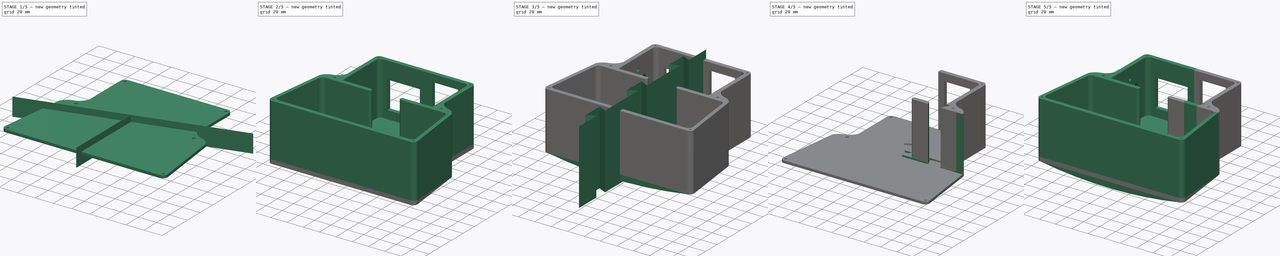
[diagram: build sequence overview — one tinted view per stage of 5, left to right]
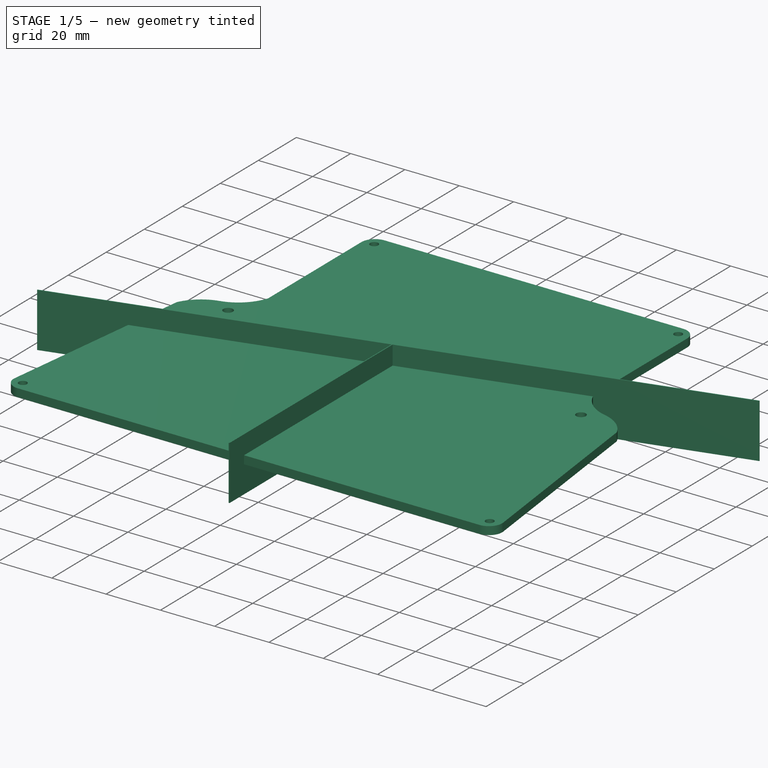
[diagram: stage 1 of 5 — iso view after this stage's code; geometry added in this stage tinted green]
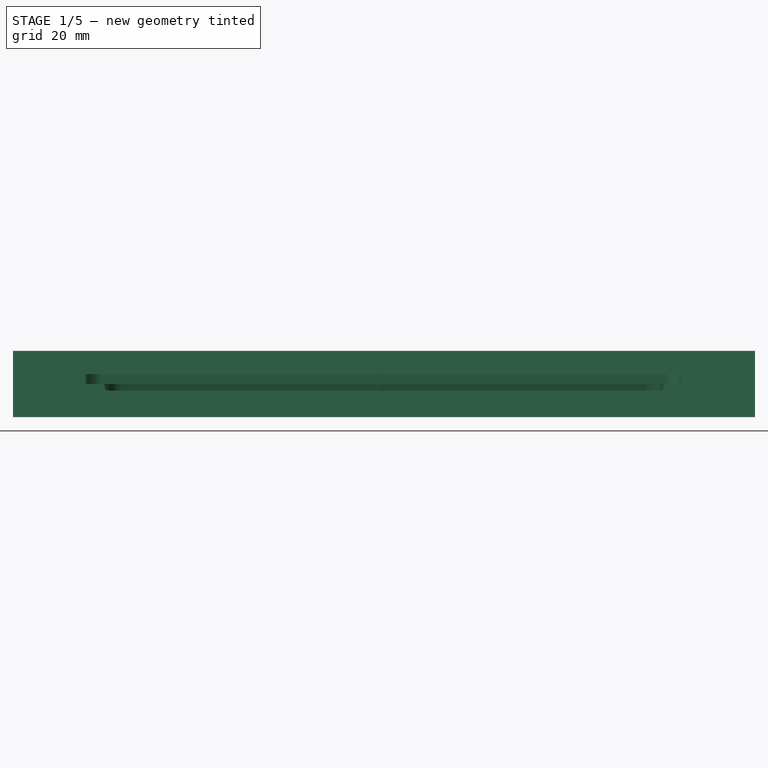
[diagram: stage 1 of 5 — front view after this stage's code; geometry added in this stage tinted green]
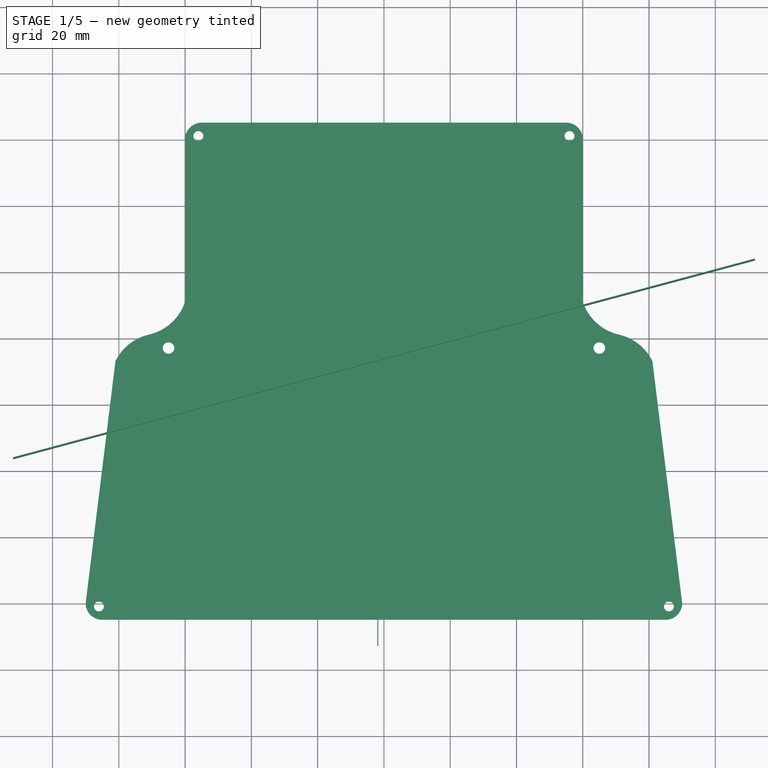
[diagram: stage 1 of 5 — top view after this stage's code; geometry added in this stage tinted green]
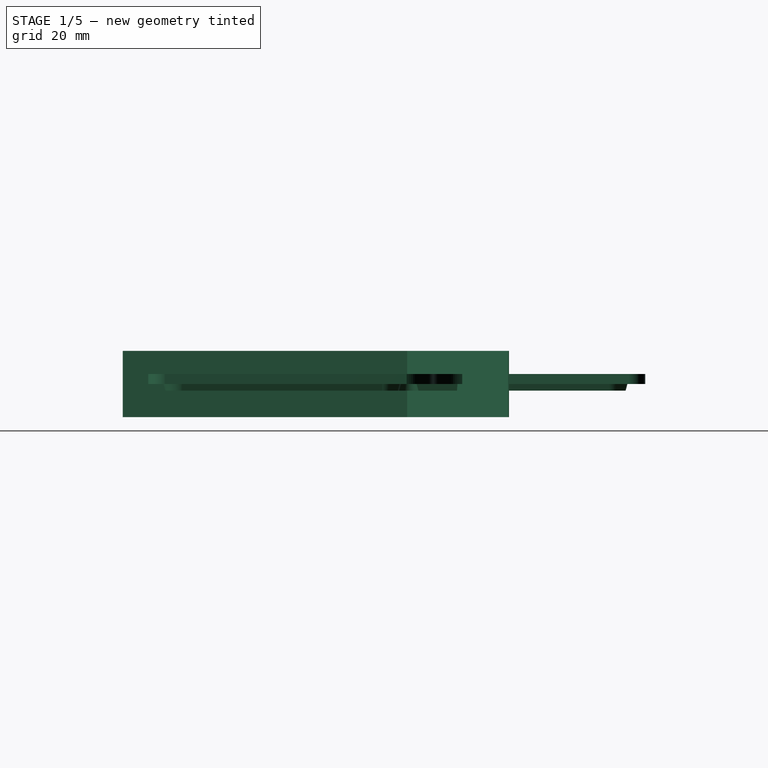
[diagram: stage 1 of 5 — right view after this stage's code; geometry added in this stage tinted green]
FCSTD DOCUMENT  (FreeCAD 0.19R21329 (Git))
Label: ElectricLongboard_Box
License: All rights reserved
LicenseURL: http://en.wikipedia.org/wiki/All_rights_reserved
objects: Part::FeaturePython×18, Sketcher::SketchObject×13, Part::Extrusion×5, PartDesign::Pocket×4, PartDesign::Pad×2, App::DocumentObjectGroup×2, Part::Loft×1, Part::Feature×1, PartDesign::Body×1, Part::MultiFuse×1, Part::Cut×1
note: 53 computed .brp shape members not serialized (recipe doc carries the construction recipe); baked Part::Feature solids carry a one-line shape summary decoded from their .brp

FEATURE [Sketcher::SketchObject] Sketch  label="Sketch_Base"
  sketch-geometry (32):
    g0: LineSegment StartX=-85 StartY=-85 StartZ=0 EndX=85 EndY=-85 EndZ=0
    g1: LineSegment StartX=-55 StartY=65 StartZ=0 EndX=55 EndY=65 EndZ=0
    g2: LineSegment StartX=-90 StartY=-80 StartZ=0 EndX=-81.0246 EndY=-7 EndZ=0
    g3: LineSegment StartX=90 StartY=-80 StartZ=0 EndX=81.0246 EndY=-7 EndZ=0
    g4: LineSegment StartX=-60 StartY=60 StartZ=0 EndX=-60 EndY=11 EndZ=0
    g5: LineSegment StartX=60 StartY=60 StartZ=0 EndX=60 EndY=11 EndZ=0
    g6: LineSegment StartX=-50 StartY=60 StartZ=0 EndX=50 EndY=60 EndZ=0
    g7: LineSegment StartX=-55 StartY=55 StartZ=0 EndX=-55 EndY=-4 EndZ=0
    g8: LineSegment StartX=55 StartY=55 StartZ=0 EndX=55 EndY=-4 EndZ=0
    g9: LineSegment StartX=-20 StartY=-9 StartZ=0 EndX=-72.4999 EndY=-9 EndZ=0
    g10: LineSegment StartX=-77.5 StartY=-14 StartZ=0 EndX=-85 EndY=-75 EndZ=0
    g11: LineSegment StartX=-80 StartY=-80 StartZ=0 EndX=80 EndY=-80 EndZ=0
    g12: LineSegment StartX=85 StartY=-75 StartZ=0 EndX=77.5 EndY=-14 EndZ=0
    g13: LineSegment StartX=20 StartY=-9 StartZ=0 EndX=72.4999 EndY=-9 EndZ=0
    g14: ArcOfCircle CenterX=50 CenterY=55 CenterZ=0 NormalX=0 NormalY=0 NormalZ=1 AngleXU=0 Radius=5 StartAngle=-9e-16 EndAngle=1.5708
    g15: ArcOfCircle CenterX=-50 CenterY=55 CenterZ=0 NormalX=0 NormalY=0 NormalZ=1 AngleXU=0 Radius=5 StartAngle=1.5708 EndAngle=3.14159
    g16: ArcOfCircle CenterX=-72.5 CenterY=-14 CenterZ=0 NormalX=0 NormalY=0 NormalZ=1 AngleXU=0 Radius=5 StartAngle=1.57078 EndAngle=3.14159
    g17: ArcOfCircle CenterX=72.5 CenterY=-14 CenterZ=0 NormalX=0 NormalY=0 NormalZ=1 AngleXU=0 Radius=5 StartAngle=-9.93996e-11 EndAngle=1.57081
    g18: ArcOfCircle CenterX=-74.2622 CenterY=15.6464 CenterZ=0 NormalX=0 NormalY=0 NormalZ=1 AngleXU=0 Radius=15 StartAngle=4.92994 EndAngle=5.96824
    g19: ArcOfCircle CenterX=-67.5508 CenterY=-13.5922 CenterZ=0 NormalX=0 NormalY=0 NormalZ=1 AngleXU=0 Radius=15 StartAngle=1.8045 EndAngle=2.68657
    g20: ArcOfCircle CenterX=-55 CenterY=60 CenterZ=0 NormalX=0 NormalY=0 NormalZ=1 AngleXU=0 Radius=5 StartAngle=1.5708 EndAngle=3.14159
    g21: ArcOfCircle CenterX=55 CenterY=60 CenterZ=0 NormalX=0 NormalY=0 NormalZ=1 AngleXU=0 Radius=5 StartAngle=-1.8e-15 EndAngle=1.5708
    g22: ArcOfCircle CenterX=85 CenterY=-80 CenterZ=0 NormalX=0 NormalY=0 NormalZ=1 AngleXU=0 Radius=5 StartAngle=4.71239 EndAngle=6.28319
    g23: ArcOfCircle CenterX=-85 CenterY=-80 CenterZ=0 NormalX=0 NormalY=0 NormalZ=1 AngleXU=0 Radius=5 StartAngle=3.14159 EndAngle=4.71239
    g24: ArcOfCircle CenterX=-80 CenterY=-75 CenterZ=0 NormalX=0 NormalY=0 NormalZ=1 AngleXU=0 Radius=5 StartAngle=3.14159 EndAngle=4.71239
    g25: ArcOfCircle CenterX=80 CenterY=-75 CenterZ=0 NormalX=0 NormalY=0 NormalZ=1 AngleXU=0 Radius=5 StartAngle=4.71239 EndAngle=6.28319
    g26: LineSegment StartX=-55 StartY=-4 StartZ=0 EndX=-20 EndY=-4 EndZ=0
    g27: LineSegment StartX=20 StartY=-4 StartZ=0 EndX=55 EndY=-4 EndZ=0
    g28: ArcOfCircle CenterX=-20 CenterY=-6.5 CenterZ=0 NormalX=0 NormalY=0 NormalZ=1 AngleXU=0 Radius=2.5 StartAngle=4.71239 EndAngle=7.85398
    g29: ArcOfCircle CenterX=20 CenterY=-6.5 CenterZ=0 NormalX=0 NormalY=0 NormalZ=1 AngleXU=0 Radius=2.5 StartAngle=1.5708 EndAngle=4.71239
    g30: ArcOfCircle CenterX=74.2622 CenterY=15.6464 CenterZ=0 NormalX=0 NormalY=0 NormalZ=1 AngleXU=0 Radius=15 StartAngle=3.45654 EndAngle=4.49484
    g31: ArcOfCircle CenterX=67.5508 CenterY=-13.5922 CenterZ=0 NormalX=0 NormalY=0 NormalZ=1 AngleXU=0 Radius=15 StartAngle=0.455021 EndAngle=1.33709
  constraints (95):
    c: DistanceY(g0,g1) = 150
    c: DistanceY(g11,g9) = 71
    c: Vertical(g4)
    c: Vertical(g7)
    c: Parallel(g2,g10)
    c: Coincident(g17,g12)
    c: Coincident(g0,g23)
    c: Coincident(g0,g22)
    c: DistanceY(g11,g0) = -5
    c: Coincident(g3,g22)
    c: Coincident(g17,g13)
    c: Horizontal(g9)
    c: Coincident(g8,g14)
    c: Coincident(g6,g14)
    c: Coincident(g6,g15)
    c: Coincident(g7,g15)
    c: Coincident(g9,g16)
    c: Coincident(g10,g16)
    c: Coincident(g2,g23)
    c: Coincident(g21,g1)
    c: Coincident(g21,g5)
    c: Coincident(g20,g1)
    c: Coincident(g4,g20)
    c: Coincident(g4,g18)
    c: DistanceY(g1,g6) = -5
    c: Coincident(g19,g2)
    c: Symmetric(g11,g11,g-2)
    c: Symmetric(g10,g12,g-2)
    c: DistanceX(g2,g10) = 5
    c: Symmetric(g0,g0,g-2)
    c: DistanceX(g0,g0) = 170
    c: DistanceX(g10,g12) = 155
    c: Radius(g16) = 5
    c: DistanceY(g10,g9) = 5
    c: Symmetric(g16,g17,g-2)
    c: Symmetric(g10,g12,g-2)
    c: Symmetric(g9,g13,g-2)
    c: DistanceX(g7,g8) = 110
    c: DistanceX(g4,g5) = 120
    c: DistanceY(g9,g7) = 5
    c: Symmetric(g7,g8,g-2)
    c: Symmetric(g6,g6,g-2)
    c: Symmetric(g1,g1,g-2)
    c: DistanceY(g7,g6) = 5
    c: Symmetric(g7,g8,g-2)
    c: DistanceY(g4,g1) = 5
    c: DistanceX(g4,g1) = 5
    c: Radius(g20) = 5
    c: DistanceX(g7,g6) = 5
    c: Radius(g15) = 5
    c: Symmetric(g4,g5,g-2)
    c: Equal(g21,g20)
    c: Equal(g14,g15)
    c: Symmetric(g4,g5,g-2)
    c: DistanceY(g9,g4) = 20
    c: Symmetric(g2,g3,g-2)
    c: Coincident(g18,g19)
    c: Radius(g18) = 15
    c: DistanceY(g9,g18) = 10
    c: DistanceY(g9,g2) = 2
    c: DistanceX(g2,g18) = 10
    c: Equal(g19,g18)
    c: Radius(g23) = 5
    c: Equal(g22,g23)
    c: Symmetric(g13,g9,g-2)
    c: DistanceX(g9,g7) = -35
    c: DistanceY(g0,g2) = 5
    c: DistanceX(g2,g0) = 5
    c: DistanceX(g10,g11) = 5
    c: DistanceY(g11,g10) = 5
    c: Coincident(g24,g10)
    c: Coincident(g24,g11)
    c: Radius(g24) = 5
    c: Coincident(g25,g11)
    c: Coincident(g25,g12)
    c: Equal(g24,g25)
    c: Symmetric(g2,g3,g-2)
    c: Horizontal(g26)
    c: Coincident(g27,g8)
    c: Coincident(g26,g7)
    c: DistanceX(g26,g9) = 0
    c: Symmetric(g26,g27,g-2)
    c: Coincident(g28,g9)
    c: Coincident(g28,g26)
    c: Radius(g28) = 2.5
    c: Coincident(g29,g27)
    c: Coincident(g29,g13)
    c: Equal(g28,g29)
    c: Coincident(g30,g5)
    c: Coincident(g30,g31)
    c: Coincident(g31,g3)
    c: Symmetric(g30,g18,g-2)
    c: Equal(g18,g30)
    c: Equal(g31,g19)
    c: DistanceY(g0,g-1) = 85
FEATURE [PartDesign::Pad] Pad  label="Pad_MainPerimeter"
  AllowMultiFace = false
  Length = 70
  Length2 = 0
  Profile = -> Sketch
  Type = 0
FEATURE [Sketcher::SketchObject] Sketch002  label="Sketch_ScrewsHoles"
  AttachmentOffset = pos=(0,0,0) rot=(0,0,1;3.14159rad)
  MapMode = 5
  Placement = pos=(0,0,0) rot=(0,-1,0;3.14159rad)
  Support = -> [Pad]
  sketch-geometry (6):
    g0: Circle CenterX=-86 CenterY=-81 CenterZ=0 NormalX=0 NormalY=0 NormalZ=1 AngleXU=0 Radius=1.15
    g1: Circle CenterX=-65 CenterY=-3 CenterZ=0 NormalX=0 NormalY=0 NormalZ=1 AngleXU=0 Radius=1.4
    g2: Circle CenterX=65 CenterY=-3 CenterZ=0 NormalX=0 NormalY=0 NormalZ=1 AngleXU=0 Radius=1.4
    g3: Circle CenterX=86 CenterY=-81 CenterZ=0 NormalX=0 NormalY=0 NormalZ=1 AngleXU=0 Radius=1.15
    g4: Circle CenterX=-56 CenterY=61 CenterZ=0 NormalX=0 NormalY=0 NormalZ=1 AngleXU=0 Radius=1.15
    g5: Circle CenterX=56 CenterY=61 CenterZ=0 NormalX=0 NormalY=0 NormalZ=1 AngleXU=0 Radius=1.15
  constraints (9):
    c: Symmetric(g0,g3,g-2)
    c: Symmetric(g4,g5,g-2)
    c: Symmetric(g1,g2,g-2)
    c: Equal(g1,g2)
    c: Equal(g4,g5)
    c: Equal(g3,g0)
    c: Diameter(g0) = 2.3
    c: Diameter(g1) = 2.8
    c: Diameter(g4) = 2.3
FEATURE [PartDesign::Pocket] Pocket  label="Pocket_ScrewHoles"
  AllowMultiFace = false
  BaseFeature = -> Pad
  Length = 5
  Length2 = 100
  Profile = -> Sketch002
  Type = 1
FEATURE [App::DocumentObjectGroup] GrExplode_Slice  label="Exploded Slice"
  Group = -> [Slice_child0,Slice_child1,Slice_child2,Slice_child3,Slice_child4,Slice_child5,Slice_child6,Slice_child7,Slice_child8]
FEATURE [Sketcher::SketchObject] Sketch011  label="Sketch_LID_Ext"
  MapMode = 2
  Support = -> [XY_Plane]
  expr: Constraints[47] = 3
  expr: Constraints[24] = Sketch.Constraints[57]
  expr: Constraints[46] = 3.5
  expr: Constraints[45] = 3
  expr: Constraints[14] = Sketch.Constraints[38]
  expr: Constraints[27] = Sketch.Constraints[62]
  expr: Constraints[17] = Sketch.Constraints[46]
  expr: Constraints[13] = Sketch.Constraints[30]
  expr: Constraints[38] = Sketch.Constraints[94]
  expr: Constraints[29] = Sketch.Constraints[66]
  expr: Constraints[18] = Sketch.Constraints[47]
  expr: Constraints[0] = Sketch.Constraints[0]
  expr: Constraints[16] = Sketch.Constraints[45]
  expr: Constraints[30] = Sketch.Constraints[67]
  expr: Constraints[25] = Sketch.Constraints[60]
  sketch-geometry (20):
    g0: LineSegment StartX=-85 StartY=-85 StartZ=0 EndX=85 EndY=-85 EndZ=0
    g1: LineSegment StartX=-55 StartY=65 StartZ=0 EndX=55 EndY=65 EndZ=0
    g2: LineSegment StartX=-90 StartY=-80 StartZ=0 EndX=-81.0246 EndY=-7 EndZ=0
    g3: LineSegment StartX=90 StartY=-80 StartZ=0 EndX=81.0246 EndY=-7 EndZ=0
    g4: LineSegment StartX=-60 StartY=60 StartZ=0 EndX=-60 EndY=11 EndZ=0
    g5: LineSegment StartX=60 StartY=60 StartZ=0 EndX=60 EndY=11 EndZ=0
    g6: ArcOfCircle CenterX=-74.2622 CenterY=15.6464 CenterZ=0 NormalX=0 NormalY=0 NormalZ=1 AngleXU=0 Radius=15 StartAngle=4.92994 EndAngle=5.96824
    g7: ArcOfCircle CenterX=-67.5508 CenterY=-13.5922 CenterZ=0 NormalX=0 NormalY=0 NormalZ=1 AngleXU=0 Radius=15 StartAngle=1.8045 EndAngle=2.68657
    g8: ArcOfCircle CenterX=-55 CenterY=60 CenterZ=0 NormalX=0 NormalY=0 NormalZ=1 AngleXU=0 Radius=5 StartAngle=1.5708 EndAngle=3.14159
    g9: ArcOfCircle CenterX=55 CenterY=60 CenterZ=0 NormalX=0 NormalY=0 NormalZ=1 AngleXU=0 Radius=5 StartAngle=-1.8e-15 EndAngle=1.5708
    g10: ArcOfCircle CenterX=85 CenterY=-80 CenterZ=0 NormalX=0 NormalY=0 NormalZ=1 AngleXU=0 Radius=5 StartAngle=4.71239 EndAngle=6.28319
    g11: ArcOfCircle CenterX=-85 CenterY=-80 CenterZ=0 NormalX=0 NormalY=0 NormalZ=1 AngleXU=0 Radius=5 StartAngle=3.14159 EndAngle=4.71239
    g12: ArcOfCircle CenterX=74.2622 CenterY=15.6464 CenterZ=0 NormalX=0 NormalY=0 NormalZ=1 AngleXU=0 Radius=15 StartAngle=3.45654 EndAngle=4.49484
    g13: ArcOfCircle CenterX=67.5508 CenterY=-13.5922 CenterZ=0 NormalX=0 NormalY=0 NormalZ=1 AngleXU=0 Radius=15 StartAngle=0.455021 EndAngle=1.33709
    g14: Circle CenterX=-86 CenterY=-81 CenterZ=0 NormalX=0 NormalY=0 NormalZ=1 AngleXU=0 Radius=1.5
    g15: Circle CenterX=-65 CenterY=-3 CenterZ=0 NormalX=0 NormalY=0 NormalZ=1 AngleXU=0 Radius=1.75
    g16: Circle CenterX=65 CenterY=-3 CenterZ=0 NormalX=0 NormalY=0 NormalZ=1 AngleXU=0 Radius=1.75
    g17: Circle CenterX=86 CenterY=-81 CenterZ=0 NormalX=0 NormalY=0 NormalZ=1 AngleXU=0 Radius=1.5
    g18: Circle CenterX=-56 CenterY=61 CenterZ=0 NormalX=0 NormalY=0 NormalZ=1 AngleXU=0 Radius=1.5
    g19: Circle CenterX=56 CenterY=61 CenterZ=0 NormalX=0 NormalY=0 NormalZ=1 AngleXU=0 Radius=1.5
  constraints (48):
    c: DistanceY(g0,g1) = 150
    c: Vertical(g4)
    c: Coincident(g0,g11)
    c: Coincident(g0,g10)
    c: Coincident(g3,g10)
    c: Coincident(g2,g11)
    c: Coincident(g9,g1)
    c: Coincident(g9,g5)
    c: Coincident(g8,g1)
    c: Coincident(g4,g8)
    c: Coincident(g4,g6)
    c: Coincident(g7,g2)
    c: Symmetric(g0,g0,g-2)
    c: DistanceX(g0,g0) = 170
    c: DistanceX(g4,g5) = 120
    c: Symmetric(g1,g1,g-2)
    c: DistanceY(g4,g1) = 5
    c: DistanceX(g4,g1) = 5
    c: Radius(g8) = 5
    c: Symmetric(g4,g5,g-2)
    c: Equal(g9,g8)
    c: Symmetric(g4,g5,g-2)
    c: Symmetric(g2,g3,g-2)
    c: Coincident(g6,g7)
    c: Radius(g6) = 15
    c: DistanceX(g2,g6) = 10
    c: Equal(g7,g6)
    c: Radius(g11) = 5
    c: Equal(g10,g11)
    c: DistanceY(g0,g2) = 5
    c: DistanceX(g2,g0) = 5
    c: Symmetric(g2,g3,g-2)
    c: Coincident(g12,g5)
    c: Coincident(g12,g13)
    c: Coincident(g13,g3)
    c: Symmetric(g12,g6,g-2)
    c: Equal(g6,g12)
    c: Equal(g13,g7)
    c: DistanceY(g0,g-1) = 85
    c: Symmetric(g14,g17,g-2)
    c: Symmetric(g18,g19,g-2)
    c: Symmetric(g15,g16,g-2)
    c: Equal(g15,g16)
    c: Equal(g18,g19)
    c: Equal(g17,g14)
    c: Diameter(g14) = 3
    c: Diameter(g15) = 3.5
    c: Diameter(g18) = 3
FEATURE [Part::Extrusion] Extrude003  label="Extrude_LID_Ext"
  Base = -> Sketch011
  Dir = (0,0,1)
  DirMode = 2
  FaceMakerClass = Part::FaceMakerBullseye
  LengthFwd = 3
  LengthRev = 0
  Solid = true
  Symmetric = false
FEATURE [Sketcher::SketchObject] Sketch012  label="Sketch_LID_Int"
  MapMode = 5
  Support = -> [XY_Plane]
  expr: Constraints[13] = Sketch.Constraints[32]
  expr: Constraints[40] = Sketch.Constraints[80]
  expr: Constraints[18] = 109
  expr: Constraints[0] = 70.5
  expr: Constraints[22] = Sketch.Constraints[43]
  expr: Constraints[14] = Sketch.Constraints[33]
  expr: Constraints[29] = Sketch.Constraints[68]
  expr: Constraints[24] = Sketch.Constraints[48]
  expr: Constraints[30] = Sketch.Constraints[69]
  expr: Constraints[28] = -34.5
  expr: Constraints[25] = Sketch.Constraints[49]
  expr: Constraints[19] = 6
  expr: Constraints[33] = Sketch.Constraints[72]
  sketch-geometry (18):
    g0: LineSegment StartX=-49.5 StartY=59.0878 StartZ=0 EndX=49.5 EndY=59.0878 EndZ=0
    g1: LineSegment StartX=-54.5 StartY=54.0878 StartZ=0 EndX=-54.5 EndY=-3.41221 EndZ=0
    g2: LineSegment StartX=54.5 StartY=54.0878 StartZ=0 EndX=54.5 EndY=-3.41221 EndZ=0
    g3: LineSegment StartX=-20 StartY=-9.41221 StartZ=0 EndX=-72.0571 EndY=-9.41221 EndZ=0
    g4: LineSegment StartX=-76.4999 StartY=-14.4122 StartZ=0 EndX=-84 EndY=-74.9122 EndZ=0
    g5: LineSegment StartX=-79 StartY=-79.9122 StartZ=0 EndX=79 EndY=-79.9122 EndZ=0
    g6: LineSegment StartX=84 StartY=-74.9122 StartZ=0 EndX=76.4999 EndY=-14.4122 EndZ=0
    g7: LineSegment StartX=20 StartY=-9.41221 StartZ=0 EndX=72.0571 EndY=-9.41221 EndZ=0
    g8: ArcOfCircle CenterX=49.5 CenterY=54.0878 CenterZ=0 NormalX=0 NormalY=0 NormalZ=1 AngleXU=0 Radius=5 StartAngle=0 EndAngle=1.5708
    g9: ArcOfCircle CenterX=-49.5 CenterY=54.0878 CenterZ=0 NormalX=0 NormalY=0 NormalZ=1 AngleXU=0 Radius=5 StartAngle=1.5708 EndAngle=3.14159
    g10: ArcOfCircle CenterX=-71.5 CenterY=-14.3811 CenterZ=0 NormalX=0 NormalY=0 NormalZ=1 AngleXU=0 Radius=5 StartAngle=1.68246 EndAngle=3.14782
    g11: ArcOfCircle CenterX=71.5 CenterY=-14.3811 CenterZ=0 NormalX=0 NormalY=0 NormalZ=1 AngleXU=0 Radius=5 StartAngle=6.27696 EndAngle=7.74232
    g12: ArcOfCircle CenterX=-79 CenterY=-74.9122 CenterZ=0 NormalX=0 NormalY=0 NormalZ=1 AngleXU=0 Radius=5 StartAngle=3.14159 EndAngle=4.71239
    g13: ArcOfCircle CenterX=79 CenterY=-74.9122 CenterZ=0 NormalX=0 NormalY=0 NormalZ=1 AngleXU=0 Radius=5 StartAngle=4.71239 EndAngle=6.28319
    g14: LineSegment StartX=-54.5 StartY=-3.41221 StartZ=0 EndX=-20 EndY=-3.41221 EndZ=0
    g15: LineSegment StartX=20 StartY=-3.41221 StartZ=0 EndX=54.5 EndY=-3.41221 EndZ=0
    g16: ArcOfCircle CenterX=-19.9526 CenterY=-6.41221 CenterZ=0 NormalX=0 NormalY=0 NormalZ=1 AngleXU=0 Radius=3.00037 StartAngle=4.69659 EndAngle=7.86978
    g17: ArcOfCircle CenterX=19.9526 CenterY=-6.41221 CenterZ=0 NormalX=0 NormalY=0 NormalZ=1 AngleXU=0 Radius=3.00037 StartAngle=1.55499 EndAngle=4.72819
  constraints (50):
    c: DistanceY(g5,g3) = 70.5
    c: Vertical(g1)
    c: Coincident(g11,g6)
    c: Coincident(g11,g7)
    c: Horizontal(g3)
    c: Coincident(g2,g8)
    c: Coincident(g0,g8)
    c: Coincident(g0,g9)
    c: Coincident(g1,g9)
    c: Coincident(g3,g10)
    c: Coincident(g4,g10)
    c: Symmetric(g5,g5,g-2)
    c: Symmetric(g4,g6,g-2)
    c: Radius(g10) = 5
    c: DistanceY(g4,g3) = 5
    c: Symmetric(g10,g11,g-2)
    c: Symmetric(g4,g6,g-2)
    c: Symmetric(g3,g7,g-2)
    c: DistanceX(g1,g2) = 109
    c: DistanceY(g3,g1) = 6
    c: Symmetric(g1,g2,g-2)
    c: Symmetric(g0,g0,g-2)
    c: DistanceY(g1,g0) = 5
    c: Symmetric(g1,g2,g-2)
    c: DistanceX(g1,g0) = 5
    c: Radius(g9) = 5
    c: Equal(g8,g9)
    c: Symmetric(g7,g3,g-2)
    c: DistanceX(g3,g1) = -34.5
    c: DistanceX(g4,g5) = 5
    c: DistanceY(g5,g4) = 5
    c: Coincident(g12,g4)
    c: Coincident(g12,g5)
    c: Radius(g12) = 5
    c: Coincident(g13,g5)
    c: Coincident(g13,g6)
    c: Equal(g12,g13)
    c: Horizontal(g14)
    c: Coincident(g15,g2)
    c: Coincident(g14,g1)
    c: DistanceX(g14,g3) = 0
    c: Symmetric(g14,g15,g-2)
    c: Coincident(g16,g3)
    c: Coincident(g16,g14)
    c: Coincident(g17,g15)
    c: Coincident(g17,g7)
    c: Equal(g16,g17)
    c: DistanceY(g5,g0) = 139
    c: DistanceX(g10,g11) = 143
    c: DistanceX(g12,g13) = 158
FEATURE [Part::Extrusion] Extrude004  label="Extrude_LID_Int"
  Base = -> Sketch012
  Dir = (0,0,1)
  DirMode = 2
  FaceMakerClass = Part::FaceMakerBullseye
  LengthFwd = 2
  LengthRev = 0
  Placement = pos=(0,0,-2) rot=(0,0,1;0rad)
  Solid = true
  Symmetric = false
  TaperAngle = 15
FEATURE [Sketcher::SketchObject] Sketch013  label="Sketch_LID_Joint"
  MapMode = 2
  Placement = pos=(0,0,0) rot=(0,1,0;3.14159rad)
  Support = -> [Sketch004]
  sketch-geometry (8):
    g0: LineSegment StartX=-111.994 StartY=23.9 StartZ=0 EndX=111.948 EndY=-36.1048 EndZ=0
    g1: LineSegment StartX=-111.994 StartY=23.6 StartZ=0 EndX=1.7 EndY=-6.8641 EndZ=0
    g2: LineSegment StartX=-111.994 StartY=23.9 StartZ=0 EndX=-111.994 EndY=23.6 EndZ=0
    g3: LineSegment StartX=111.948 StartY=-36.1048 StartZ=0 EndX=111.948 EndY=-36.4048 EndZ=0
    g4: LineSegment StartX=1.7 StartY=-6.8641 StartZ=0 EndX=1.7 EndY=-92.6654 EndZ=0
    g5: LineSegment StartX=2 StartY=-6.94448 StartZ=0 EndX=2 EndY=-92.6654 EndZ=0
    g6: LineSegment StartX=1.7 StartY=-92.6654 StartZ=0 EndX=2 EndY=-92.6654 EndZ=0
    g7: LineSegment StartX=2 StartY=-6.94448 StartZ=0 EndX=111.948 EndY=-36.4048 EndZ=0
  constraints (20):
    c: Parallel(g0,g1)
    c: Coincident(g2,g0)
    c: Coincident(g2,g1)
    c: Coincident(g3,g0)
    c: Coincident(g3,g7)
    c: Vertical(g3)
    c: Vertical(g2)
    c: DistanceY(g3,g3) = 0.3
    c: Angle(g0,g-1) = 0.261799
    c: Vertical(g4)
    c: Vertical(g5)
    c: DistanceY(g-1,g1) = 23.6
    c: Horizontal(g6)
    c: Coincident(g6,g4)
    c: Coincident(g6,g5)
    c: DistanceX(g4,g5) = 0.3
    c: Coincident(g1,g4)
    c: Coincident(g7,g5)
    c: Tangent(g1,g7)
    c: DistanceX(g5,g-1) = -2
FEATURE [Part::Extrusion] Extrude005  label="Extrude_LID_Joint"
  Base = -> Sketch013
  Dir = (0,0,-1)
  DirMode = 2
  FaceMakerClass = Part::FaceMakerBullseye
  LengthFwd = 10
  LengthRev = 10
  Solid = true
  Symmetric = false
FEATURE [Part::FeaturePython] Connect  # WARN: FeaturePython — macro-defined, semantics opaque (R4)
  Objects = -> [Extrude003,Extrude004]
  Tolerance = 0
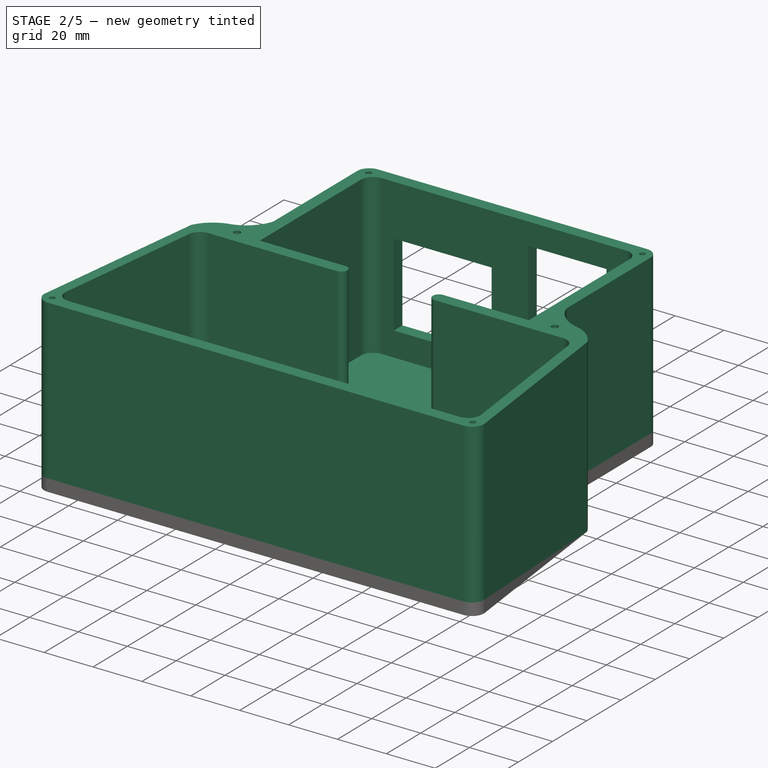
[diagram: stage 2 of 5 — iso view after this stage's code; geometry added in this stage tinted green]
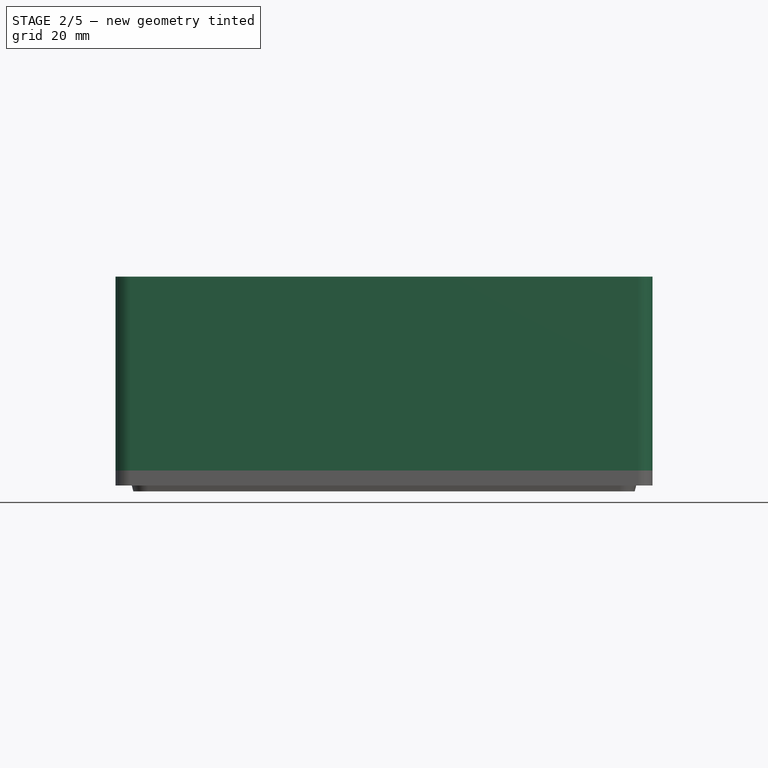
[diagram: stage 2 of 5 — front view after this stage's code; geometry added in this stage tinted green]
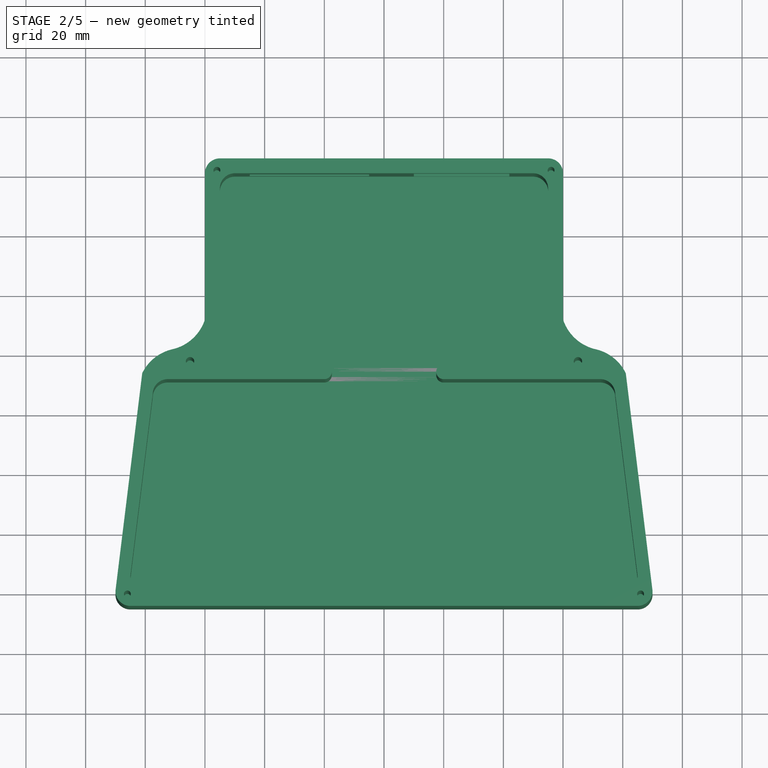
[diagram: stage 2 of 5 — top view after this stage's code; geometry added in this stage tinted green]
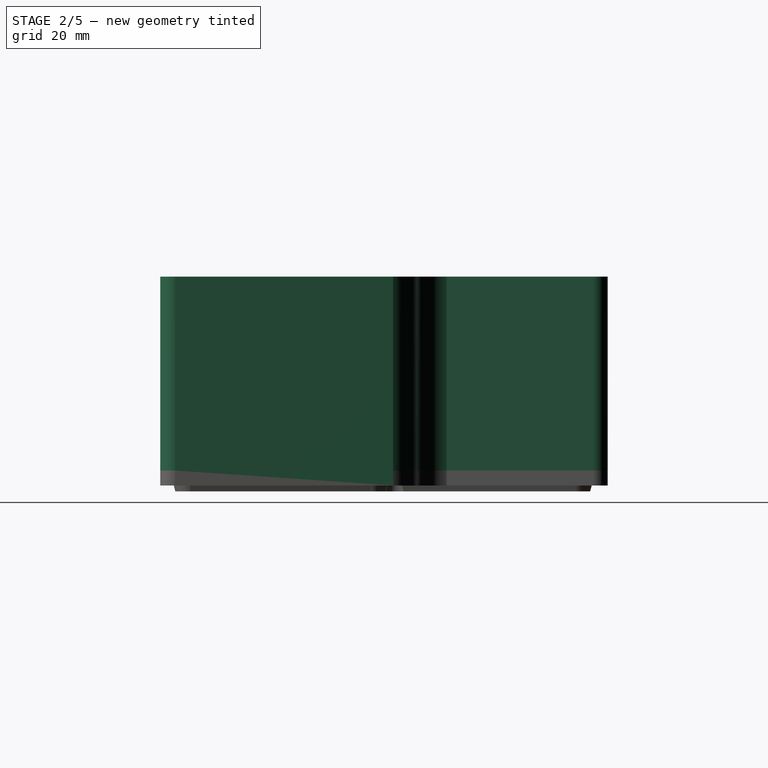
[diagram: stage 2 of 5 — right view after this stage's code; geometry added in this stage tinted green]
FEATURE [Sketcher::SketchObject] Sketch003  label="Sketch_Base_ExteriorOnly"
  expr: Constraints[38] = Sketch.Constraints[94]
  expr: Constraints[29] = Sketch.Constraints[66]
  expr: Constraints[13] = Sketch.Constraints[30]
  expr: Constraints[25] = Sketch.Constraints[60]
  expr: Constraints[30] = Sketch.Constraints[67]
  expr: Constraints[27] = Sketch.Constraints[62]
  expr: Constraints[17] = Sketch.Constraints[46]
  expr: Constraints[14] = Sketch.Constraints[38]
  expr: Constraints[0] = Sketch.Constraints[0]
  expr: Constraints[18] = Sketch.Constraints[47]
  expr: Constraints[16] = Sketch.Constraints[45]
  expr: Constraints[24] = Sketch.Constraints[57]
  sketch-geometry (14):
    g0: LineSegment StartX=-85 StartY=-85 StartZ=0 EndX=85 EndY=-85 EndZ=0
    g1: LineSegment StartX=-55 StartY=65 StartZ=0 EndX=55 EndY=65 EndZ=0
    g2: LineSegment StartX=-90 StartY=-80 StartZ=0 EndX=-81.0246 EndY=-6.99998 EndZ=0
    g3: LineSegment StartX=90 StartY=-80 StartZ=0 EndX=81.0246 EndY=-6.99998 EndZ=0
    g4: LineSegment StartX=-60 StartY=60 StartZ=0 EndX=-60 EndY=11.0063 EndZ=0
    g5: LineSegment StartX=60 StartY=60 StartZ=0 EndX=60 EndY=11.0063 EndZ=0
    g6: ArcOfCircle CenterX=-74.2641 CenterY=15.647 CenterZ=0 NormalX=0 NormalY=0 NormalZ=1 AngleXU=0 Radius=15 StartAngle=4.93007 EndAngle=5.96865
    g7: ArcOfCircle CenterX=-67.5503 CenterY=-13.5911 CenterZ=0 NormalX=0 NormalY=0 NormalZ=1 AngleXU=0 Radius=15 StartAngle=1.80454 EndAngle=2.68665
    g8: ArcOfCircle CenterX=-55 CenterY=60 CenterZ=0 NormalX=0 NormalY=0 NormalZ=1 AngleXU=0 Radius=5 StartAngle=1.5708 EndAngle=3.14159
    g9: ArcOfCircle CenterX=55 CenterY=60 CenterZ=0 NormalX=0 NormalY=0 NormalZ=1 AngleXU=0 Radius=5 StartAngle=6e-16 EndAngle=1.5708
    g10: ArcOfCircle CenterX=85 CenterY=-80 CenterZ=0 NormalX=0 NormalY=0 NormalZ=1 AngleXU=0 Radius=5 StartAngle=4.71239 EndAngle=6.28319
    g11: ArcOfCircle CenterX=-85 CenterY=-80 CenterZ=0 NormalX=0 NormalY=0 NormalZ=1 AngleXU=0 Radius=5 StartAngle=3.14159 EndAngle=4.71239
    g12: ArcOfCircle CenterX=74.2641 CenterY=15.647 CenterZ=0 NormalX=0 NormalY=0 NormalZ=1 AngleXU=0 Radius=15 StartAngle=3.45613 EndAngle=4.49471
    g13: ArcOfCircle CenterX=67.5503 CenterY=-13.5911 CenterZ=0 NormalX=0 NormalY=0 NormalZ=1 AngleXU=0 Radius=15 StartAngle=0.454941 EndAngle=1.33705
  constraints (39):
    c: DistanceY(g0,g1) = 150
    c: Vertical(g4)
    c: Coincident(g0,g11)
    c: Coincident(g0,g10)
    c: Coincident(g3,g10)
    c: Coincident(g2,g11)
    c: Coincident(g9,g1)
    c: Coincident(g9,g5)
    c: Coincident(g8,g1)
    c: Coincident(g4,g8)
    c: Coincident(g4,g6)
    c: Coincident(g7,g2)
    c: Symmetric(g0,g0,g-2)
    c: DistanceX(g0,g0) = 170
    c: DistanceX(g4,g5) = 120
    c: Symmetric(g1,g1,g-2)
    c: DistanceY(g4,g1) = 5
    c: DistanceX(g4,g1) = 5
    c: Radius(g8) = 5
    c: Symmetric(g4,g5,g-2)
    c: Equal(g9,g8)
    c: Symmetric(g4,g5,g-2)
    c: Symmetric(g2,g3,g-2)
    c: Coincident(g6,g7)
    c: Radius(g6) = 15
    c: DistanceX(g2,g6) = 10
    c: Equal(g7,g6)
    c: Radius(g11) = 5
    c: Equal(g10,g11)
    c: DistanceY(g0,g2) = 5
    c: DistanceX(g2,g0) = 5
    c: Symmetric(g2,g3,g-2)
    c: Coincident(g12,g5)
    c: Coincident(g12,g13)
    c: Coincident(g13,g3)
    c: Symmetric(g12,g6,g-2)
    c: Equal(g6,g12)
    c: Equal(g13,g7)
    c: DistanceY(g0,g-1) = 85
FEATURE [PartDesign::Pad] Pad001  label="Pad_Bottom"
  AllowMultiFace = false
  BaseFeature = -> Pocket
  Length = 5
  Length2 = 100
  Profile = -> Sketch003
  Type = 0
FEATURE [Sketcher::SketchObject] Sketch005  label="Sketch_Holes_FixBoard"
  ExternalGeometry = -> [Sketch003]
  MapMode = 5
  Placement = pos=(0,0,0) rot=(1,0,0;3.14159rad)
  Support = -> [Pad001]
  sketch-geometry (4):
    g0: Circle CenterX=-20.5 CenterY=70 CenterZ=0 NormalX=0 NormalY=0 NormalZ=1 AngleXU=0 Radius=2.5
    g1: Circle CenterX=20.5 CenterY=70 CenterZ=0 NormalX=0 NormalY=0 NormalZ=1 AngleXU=0 Radius=2.5
    g2: Circle CenterX=-20.5 CenterY=16 CenterZ=0 NormalX=0 NormalY=0 NormalZ=1 AngleXU=0 Radius=2.5
    g3: Circle CenterX=20.5 CenterY=16 CenterZ=0 NormalX=0 NormalY=0 NormalZ=1 AngleXU=0 Radius=2.5
  constraints (10):
    c: Diameter(g0) = 5
    c: Equal(g0,g1)
    c: Equal(g2,g0)
    c: Equal(g3,g0)
    c: DistanceY(g0,g-3) = 15
    c: DistanceX(g0,g-1) = 20.5
    c: Symmetric(g0,g1,g-2)
    c: DistanceX(g2,g0) = 0
    c: DistanceY(g2,g0) = 54
    c: Symmetric(g2,g3,g-2)
FEATURE [Sketcher::SketchObject] Sketch006  label="Sketch_HolesMotorDriver_LCD"
  MapMode = 5
  Placement = pos=(0,65,0) rot=(0,0.707107,0.707107;3.14159rad)
  sketch-geometry (8):
    g0: LineSegment StartX=-42 StartY=61 StartZ=0 EndX=-10 EndY=61 EndZ=0
    g1: LineSegment StartX=-10 StartY=61 StartZ=0 EndX=-10 EndY=10 EndZ=0
    g2: LineSegment StartX=-10 StartY=10 StartZ=0 EndX=-42 EndY=10 EndZ=0
    g3: LineSegment StartX=-42 StartY=10 StartZ=0 EndX=-42 EndY=61 EndZ=0
    g4: LineSegment StartX=5 StartY=49 StartZ=0 EndX=45 EndY=49 EndZ=0
    g5: LineSegment StartX=45 StartY=49 StartZ=0 EndX=45 EndY=15 EndZ=0
    g6: LineSegment StartX=45 StartY=15 StartZ=0 EndX=5 EndY=15 EndZ=0
    g7: LineSegment StartX=5 StartY=15 StartZ=0 EndX=5 EndY=49 EndZ=0
  constraints (24):
    c: Coincident(g0,g1)
    c: Coincident(g1,g2)
    c: Coincident(g2,g3)
    c: Coincident(g3,g0)
    c: Horizontal(g0)
    c: Horizontal(g2)
    c: Vertical(g1)
    c: Vertical(g3)
    c: DistanceX(g0,g0) = 32
    c: DistanceY(g1,g1) = 51
    c: DistanceX(g1,g-1) = 10
    c: DistanceY(g-1,g1) = 10
    c: Coincident(g4,g5)
    c: Coincident(g5,g6)
    c: Coincident(g6,g7)
    c: Coincident(g7,g4)
    c: Horizontal(g4)
    c: Horizontal(g6)
    c: Vertical(g5)
    c: Vertical(g7)
    c: DistanceX(g4,g4) = 40
    c: DistanceY(g5,g5) = 34
    c: DistanceY(g-1,g6) = 15
    c: DistanceX(g-1,g6) = 5
FEATURE [PartDesign::Pocket] Pocket002  label="Pocket_HolesMotorDriver_LCD"
  BaseFeature = -> Pad001
  Length = 5
  Length2 = 100
  Profile = -> Sketch006
  Type = 2
FEATURE [Part::FeaturePython] Slice001  # WARN: FeaturePython — macro-defined, semantics opaque (R4)
  Base = -> Connect
  Mode = 1
  Tolerance = 0
  Tools = -> [Extrude005]
FEATURE [Part::FeaturePython] Slice001_child0  label="Slice001.0"  # WARN: FeaturePython — macro-defined, semantics opaque (R4)
  Base = -> Slice001
  FilterType = 1
  Invert = false
  OverrideMaxVal = 0
  WindowFrom = 80
  WindowTo = 100
  items = 0
FEATURE [Part::FeaturePython] Slice001_child1  label="Slice001.1"  # WARN: FeaturePython — macro-defined, semantics opaque (R4)
  Base = -> Slice001
  FilterType = 1
  Invert = false
  OverrideMaxVal = 0
  WindowFrom = 80
  WindowTo = 100
  items = 1
FEATURE [Part::FeaturePython] Slice001_child2  label="Slice001.2"  # WARN: FeaturePython — macro-defined, semantics opaque (R4)
  Base = -> Slice001
  FilterType = 1
  Invert = false
  OverrideMaxVal = 0
  WindowFrom = 80
  WindowTo = 100
  items = 2
FEATURE [Part::FeaturePython] Slice001_child3  label="Slice001.3"  # WARN: FeaturePython — macro-defined, semantics opaque (R4)
  Base = -> Slice001
  FilterType = 1
  Invert = false
  OverrideMaxVal = 0
  WindowFrom = 80
  WindowTo = 100
  items = 3
FEATURE [App::DocumentObjectGroup] GrExplode_Slice001  label="Exploded Slice001"
  Group = -> [Slice001_child0,Slice001_child1,Slice001_child2,Slice001_child3]
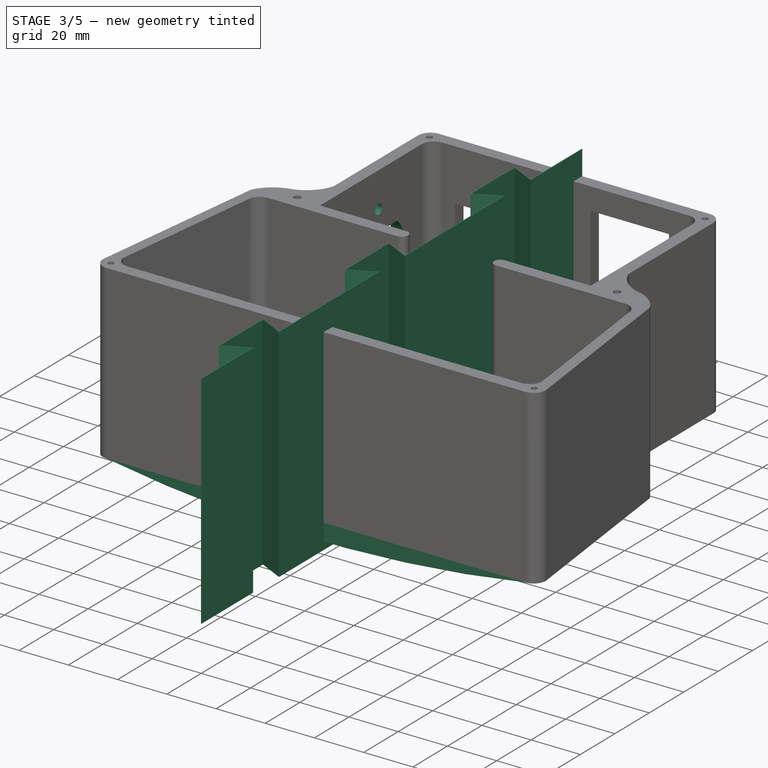
[diagram: stage 3 of 5 — iso view after this stage's code; geometry added in this stage tinted green]
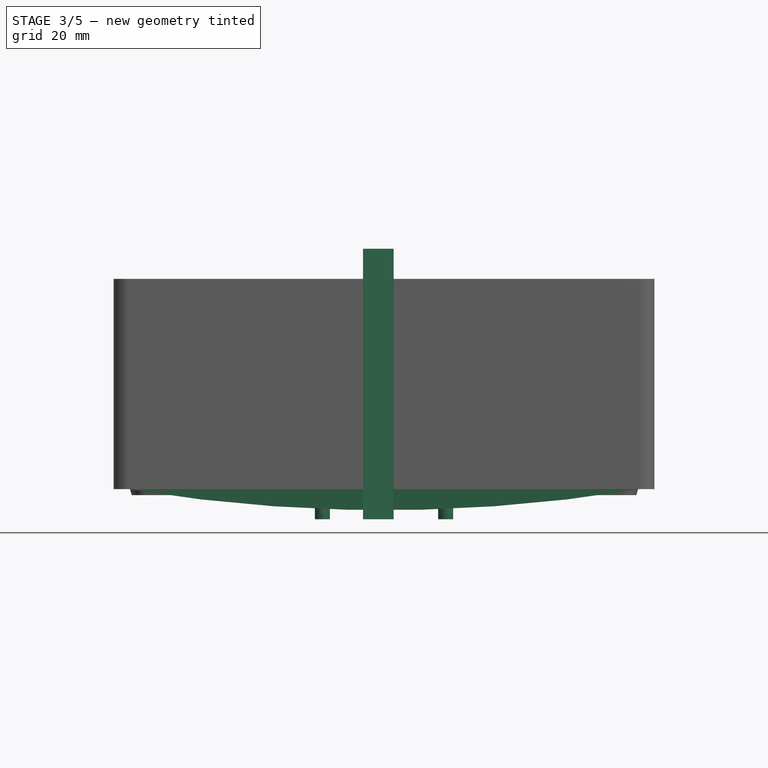
[diagram: stage 3 of 5 — front view after this stage's code; geometry added in this stage tinted green]
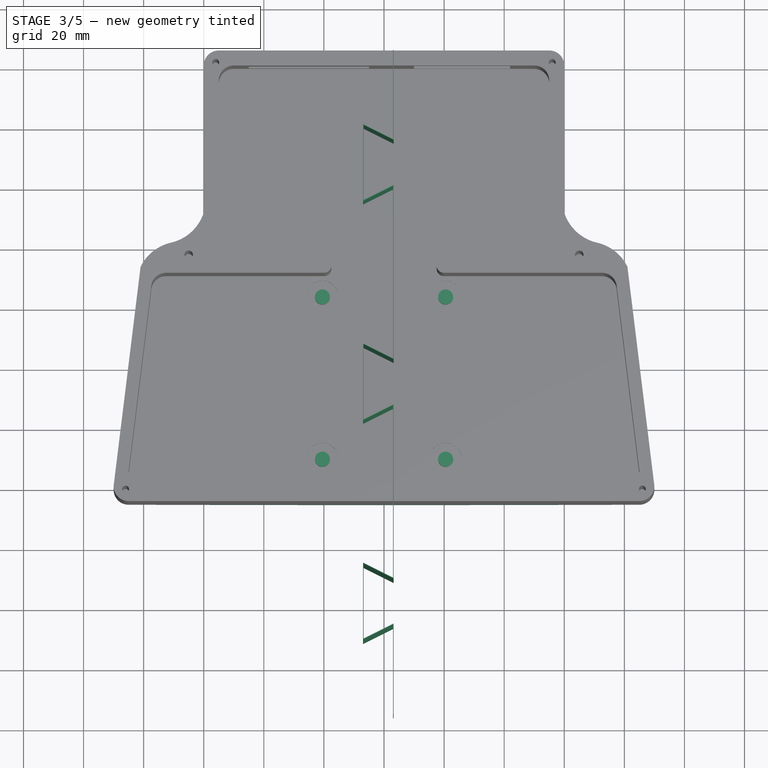
[diagram: stage 3 of 5 — top view after this stage's code; geometry added in this stage tinted green]
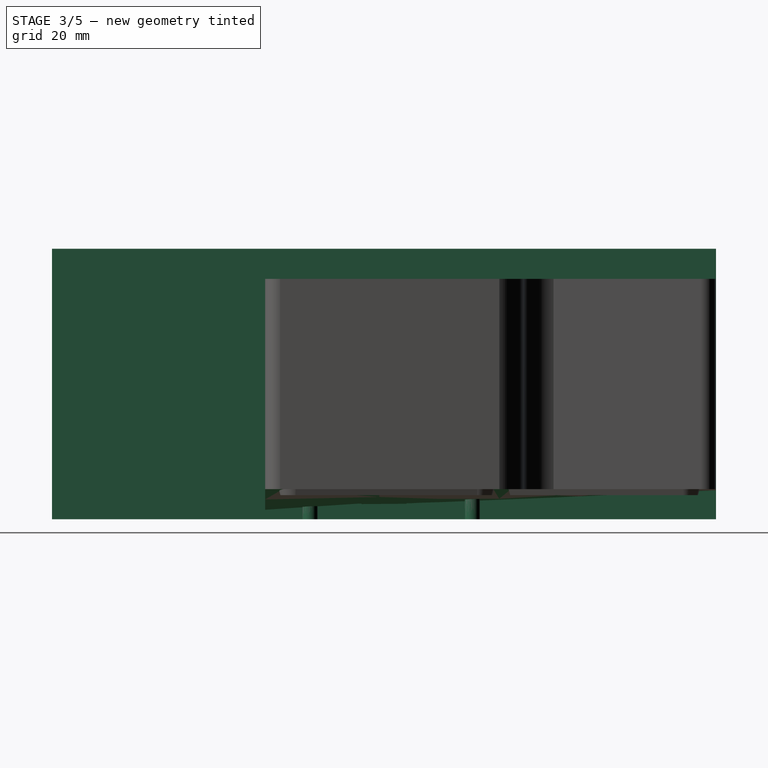
[diagram: stage 3 of 5 — right view after this stage's code; geometry added in this stage tinted green]
FEATURE [Sketcher::SketchObject] Sketch007  label="Sketch_HoleCircuitBreaker"
  MapMode = 5
  Placement = pos=(-60,0,0) rot=(0.57735,-0.57735,-0.57735;2.0944rad)
  Support = -> [Pocket002]
  expr: Constraints[7] = 23 / 2
  sketch-geometry (7):
    g0: ArcOfCircle CenterX=-30.0103 CenterY=35.8306 CenterZ=0 NormalX=0 NormalY=0 NormalZ=1 AngleXU=0 Radius=15.75 StartAngle=2.32304 EndAngle=3.96015
    g1: LineSegment StartX=-40.772 StartY=47.3306 StartZ=0 EndX=-19.2487 EndY=47.3306 EndZ=0
    g2: LineSegment StartX=-40.772 StartY=24.3306 StartZ=0 EndX=-19.2487 EndY=24.3306 EndZ=0
    g3: ArcOfCircle CenterX=-30.0103 CenterY=35.8306 CenterZ=0 NormalX=0 NormalY=0 NormalZ=1 AngleXU=0 Radius=15.75 StartAngle=5.46463 EndAngle=7.10174
    g4: LineSegment [constr] StartX=-30.0103 StartY=63.3306 StartZ=0 EndX=-30.0103 EndY=8.33056 EndZ=0
    g5: Circle CenterX=-30.0103 CenterY=55.6306 CenterZ=0 NormalX=0 NormalY=0 NormalZ=1 AngleXU=0 Radius=2
    g6: Circle CenterX=-30.0103 CenterY=16.0306 CenterZ=0 NormalX=0 NormalY=0 NormalZ=1 AngleXU=0 Radius=2
  constraints (19):
    c: Diameter(g0) = 31.5
    c: Horizontal(g1)
    c: Parallel(g2,g1)
    c: Equal(g0,g3)
    c: Coincident(g0,g2)
    c: Coincident(g3,g2)
    c: Coincident(g0,g3)
    c: DistanceY(g2,g0) = 11.5
    c: Coincident(g0,g1)
    c: DistanceY(g0,g0) = 23
    c: Coincident(g1,g3)
    c: Vertical(g4)
    c: DistanceY(g4,g4) = 55
    c: Symmetric(g4,g4,g0)
    c: DistanceY(g6,g5) = 39.6
    c: Symmetric(g5,g6,g0)
    c: DistanceX(g5,g6) = 0
    c: Diameter(g5) = 4
    c: Equal(g5,g6)
FEATURE [PartDesign::Pocket] Pocket003  label="Pocket_HoleCircuitBreaker"
  BaseFeature = -> Pocket002
  Length = 5
  Length2 = 100
  Profile = -> Sketch007
  Type = 2
FEATURE [Sketcher::SketchObject] Sketch008  label="Sketch_BottomBump"
  ExternalGeometry = -> [Sketch003]
  MapMode = 5
  Placement = pos=(0,-85,0) rot=(1,0,0;1.5708rad)
  Support = -> [Pad001]
  sketch-geometry (3):
    g0: ArcOfCircle CenterX=9.32e-14 CenterY=512.571 CenterZ=0 NormalX=0 NormalY=0 NormalZ=1 AngleXU=0 Radius=519.571 StartAngle=4.54805 EndAngle=4.87672
    g1: GeomPoint X=0 Y=-7 Z=0
    g2: LineSegment StartX=-85 StartY=1.137e-13 StartZ=0 EndX=85 EndY=0 EndZ=0
  constraints (7):
    c: Coincident(g0,g-3)
    c: Coincident(g0,g-3)
    c: PointOnObject(g1,g0)
    c: DistanceX(g-1,g1) = 0
    c: DistanceY(g1,g-1) = 7
    c: Coincident(g2,g0)
    c: Coincident(g2,g0)
FEATURE [Sketcher::SketchObject] Sketch009  label="Sketch_BottomBump2"
  ExternalGeometry = -> [Pad001]
  MapMode = 5
  Placement = pos=(0,65,0) rot=(0,0.707107,0.707107;3.14159rad)
  Support = -> [Pad001]
  sketch-geometry (2):
    g0: LineSegment StartX=-30 StartY=5.03633e-11 StartZ=0 EndX=30 EndY=3.12639e-11 EndZ=0
    g1: ArcOfCircle CenterX=3.1861e-10 CenterY=999.55 CenterZ=0 NormalX=0 NormalY=0 NormalZ=1 AngleXU=0 Radius=1000 StartAngle=4.68238 EndAngle=4.74239
  constraints (6):
    c: Coincident(g1,g0)
    c: Coincident(g1,g0)
    c: Radius(g1) = 1000
    c: DistanceY(g0,g-3) = 0
    c: Symmetric(g0,g0,g-2)
    c: DistanceX(g0,g-1) = 30
FEATURE [Part::Loft] Loft  label="Loft_BottomBump"
  Closed = false
  MaxDegree = 5
  Ruled = false
  Sections = -> [Sketch008,Sketch009]
  Solid = true
FEATURE [Part::Extrusion] Extrude  label="Extrude_Holes_FixBoard"
  Base = -> Sketch005
  Dir = (0,0,-1)
  DirMode = 2
  FaceMakerClass = Part::FaceMakerBullseye
  LengthFwd = 10
  LengthRev = 10
  Solid = true
  Symmetric = false
FEATURE [Part::Feature] Extrude002  label="Extrude_Dovejoint_Vert"
  Placement = pos=(-6,-19,0) rot=(0,0,1;1.5708rad)
  shape: bbox 10.2 x 75 x 90 mm, 14 faces (baked)
FEATURE [Part::FeaturePython] Array001  label="Array_Dovejoint_Vert"  # Draft array (typed FeaturePython)
  Angle = 360
  ArrayType = 0
  Axis = (0,0,1)
  Base = -> Extrude002
  Center = (0,0,0)
  Count = 3
  ExpandArray = false
  Fuse = true
  IntervalAxis = (0,0,0)
  IntervalX = (0,0,0)
  IntervalY = (0,-73,0)
  IntervalZ = (0,0,100)
  NumberCircles = 2
  NumberPolar = 1
  NumberX = 1
  NumberY = 3
  NumberZ = 1
  PlacementList = 3 placements: arithmetic series from (-6,-19,0) step (0,-73,0) to (-6,-165,0)
  RadialDistance = 1
  ScaleList = (3) [(1,1,1),(1,1,1),(1,1,1)]
  Symmetry = 1
  TangentialDistance = 1
FEATURE [Sketcher::SketchObject] Sketch010  label="Sketch_Holes_FixBoard_HeadRoom"
  AttachmentOffset = pos=(0,0,5) rot=(0,0,1;0rad)
  ExternalGeometry = -> [Sketch005]
  MapMode = 2
  Placement = pos=(0,0,5) rot=(0,0,1;0rad)
  Support = -> [Pad001]
  sketch-geometry (4):
    g0: Circle CenterX=-20.5 CenterY=-16 CenterZ=0 NormalX=0 NormalY=0 NormalZ=1 AngleXU=0 Radius=5.5
    g1: Circle CenterX=20.5 CenterY=-16 CenterZ=0 NormalX=0 NormalY=0 NormalZ=1 AngleXU=0 Radius=5.5
    g2: Circle CenterX=20.5 CenterY=-70 CenterZ=0 NormalX=0 NormalY=0 NormalZ=1 AngleXU=0 Radius=5.5
    g3: Circle CenterX=-20.5 CenterY=-70 CenterZ=0 NormalX=0 NormalY=0 NormalZ=1 AngleXU=0 Radius=5.5
  constraints (8):
    c: Equal(g0,g1)
    c: Equal(g0,g2)
    c: Equal(g0,g3)
    c: Diameter(g0) = 11
    c: Coincident(g0,g-3)
    c: Coincident(g1,g-4)
    c: Coincident(g2,g-5)
    c: Coincident(g3,g-6)
FEATURE [PartDesign::Pocket] Pocket004  label="Pocket_Holes_FixBoard_HeadRoom"
  BaseFeature = -> Pocket003
  Length = 3
  Length2 = 0
  Profile = -> Sketch010
  Type = 4
FEATURE [PartDesign::Body] Body
  Group = -> [Pad,Pocket,Pad001,Sketch004,Sketch006,Pocket002,Sketch007,Pocket003,Sketch008,Sketch009,Pocket004]
  Origin = -> Origin
  Tip = -> Pocket004
FEATURE [Part::MultiFuse] Fusion  label="Fusion_Body-BottomLoft"
  Shapes = -> [Loft,Body]
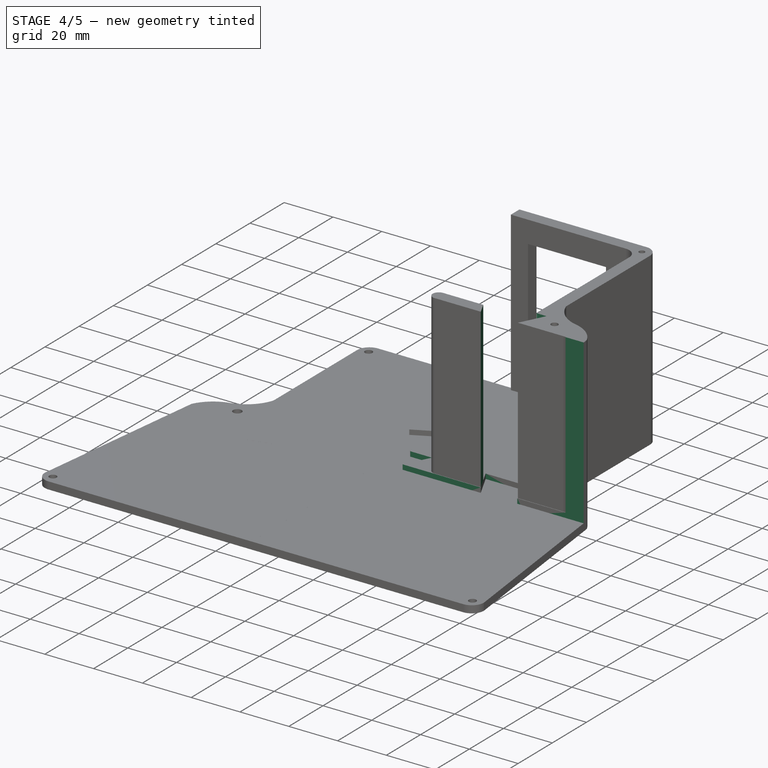
[diagram: stage 4 of 5 — iso view after this stage's code; geometry added in this stage tinted green]
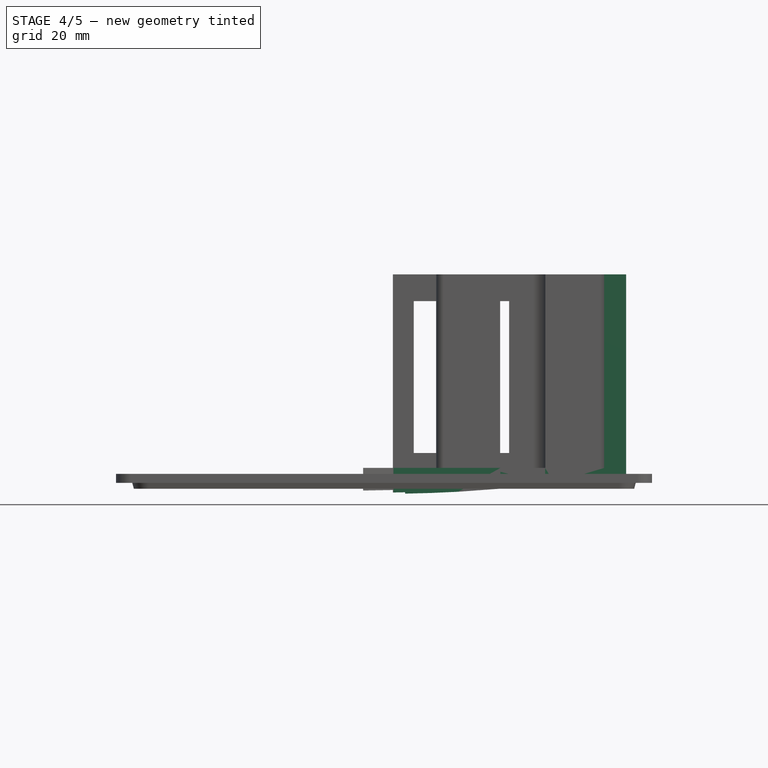
[diagram: stage 4 of 5 — front view after this stage's code; geometry added in this stage tinted green]
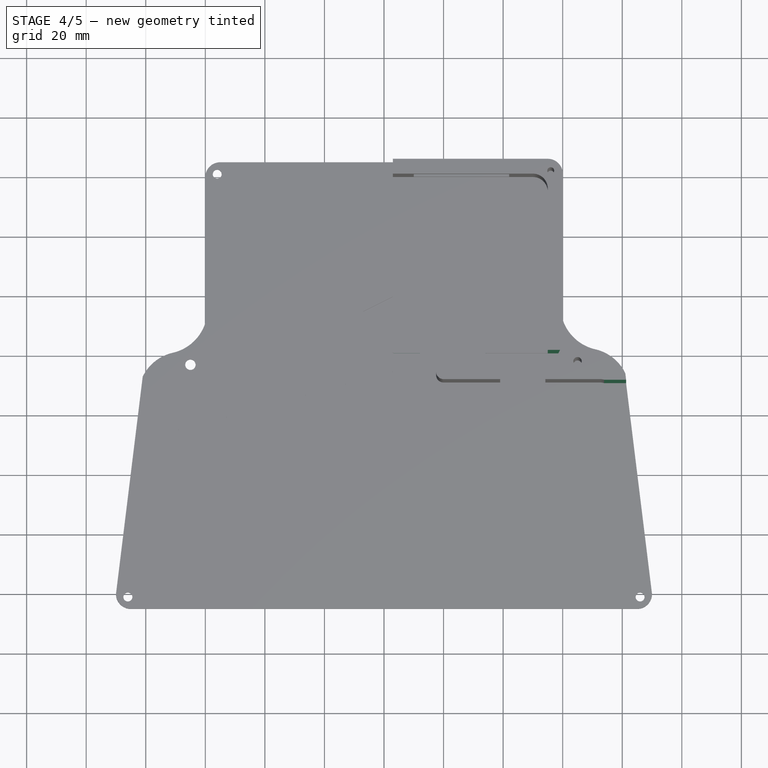
[diagram: stage 4 of 5 — top view after this stage's code; geometry added in this stage tinted green]
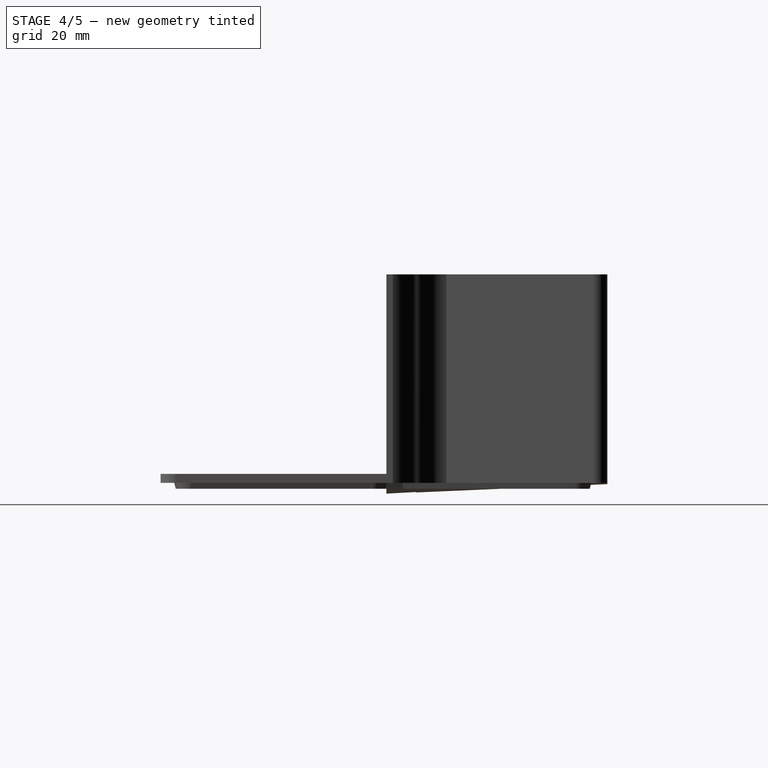
[diagram: stage 4 of 5 — right view after this stage's code; geometry added in this stage tinted green]
FEATURE [Sketcher::SketchObject] Sketch004  label="Sketch_DoveJoint"
  AttachmentOffset = pos=(0,0,0) rot=(0,0,1;3.14159rad)
  ExternalGeometry = -> [Pocket]
  MapMode = 5
  Placement = pos=(0,0,0) rot=(0,-1,0;3.14159rad)
  Support = -> [Pocket]
  sketch-geometry (12):
    g0: LineSegment StartX=-84.0836 StartY=-9.2 StartZ=0 EndX=-54.0836 EndY=-9.2 EndZ=0
    g1: LineSegment StartX=-54.0836 StartY=-9.2 StartZ=0 EndX=-59.0836 EndY=0.8 EndZ=0
    g2: LineSegment StartX=-59.0836 StartY=0.8 StartZ=0 EndX=-34.0836 EndY=0.8 EndZ=0
    g3: LineSegment StartX=-34.0836 StartY=0.8 StartZ=0 EndX=-39.0836 EndY=-9.2 EndZ=0
    g4: LineSegment StartX=-84.0836 StartY=-9 StartZ=0 EndX=-54.3836 EndY=-9 EndZ=0
    g5: LineSegment StartX=-54.3836 StartY=-9 StartZ=0 EndX=-59.3836 EndY=1 EndZ=0
    g6: LineSegment StartX=-59.3836 StartY=1 StartZ=0 EndX=-33.7836 EndY=1 EndZ=0
    g7: LineSegment StartX=-33.7836 StartY=1 StartZ=0 EndX=-38.7836 EndY=-9 EndZ=0
    g8: LineSegment StartX=-84.0836 StartY=-9 StartZ=0 EndX=-84.0836 EndY=-9.2 EndZ=0
    g9: LineSegment StartX=-38.7836 StartY=-9 StartZ=0 EndX=-9.08361 EndY=-9 EndZ=0
    g10: LineSegment StartX=-39.0836 StartY=-9.2 StartZ=0 EndX=-9.08361 EndY=-9.2 EndZ=0
    g11: LineSegment StartX=-9.08361 StartY=-9 StartZ=0 EndX=-9.08361 EndY=-9.2 EndZ=0
  constraints (35):
    c: Coincident(g1,g2)
    c: Coincident(g1,g0)
    c: Coincident(g2,g3)
    c: DistanceY(g3,g0) = 0
    c: DistanceX(g1,g2) = 25
    c: DistanceX(g0,g3) = 15
    c: DistanceY(g0,g1) = 10
    c: DistanceX(g0,g0) = 30
    c: Coincident(g5,g4)
    c: Coincident(g5,g6)
    c: Coincident(g6,g7)
    c: DistanceY(g0,g4) = 0.2
    c: Parallel(g5,g1)
    c: Parallel(g7,g3)
    c: Parallel(g6,g2)
    c: Parallel(g4,g0)
    c: Parallel(g4,g6)
    c: DistanceX(g4,g0) = 0.3
    c: Horizontal(g0)
    c: DistanceY(g3,g7) = 0.2
    c: DistanceX(g3,g7) = 0.3
    c: DistanceY(g1,g5) = 0.2
    c: Equal(g1,g3)
    c: DistanceX(g0,g4) = 0
    c: Horizontal(g9)
    c: Horizontal(g10)
    c: Coincident(g8,g4)
    c: Coincident(g0,g8)
    c: Coincident(g7,g9)
    c: Coincident(g3,g10)
    c: Vertical(g11)
    c: Coincident(g9,g11)
    c: Coincident(g10,g11)
    c: DistanceX(g3,g10) = 30
    c: DistanceY(g9,g-3) = 5
FEATURE [Part::Extrusion] Extrude001  label="Extrude_Dovejoint"
  Base = -> Sketch004
  Dir = (0,0,-1)
  DirMode = 2
  FaceMakerClass = Part::FaceMakerBullseye
  LengthFwd = 10
  LengthRev = 80
  Solid = true
  Symmetric = false
FEATURE [Part::FeaturePython] Array  label="Array_DoveJoint"  # Draft array (typed FeaturePython)
  Angle = 360
  ArrayType = 0
  Axis = (0,0,1)
  Base = -> Extrude001
  Center = (0,0,0)
  Count = 3
  ExpandArray = false
  Fuse = true
  IntervalAxis = (0,0,0)
  IntervalX = (-47,0,0)
  IntervalY = (0,100,0)
  IntervalZ = (0,0,100)
  LinkTransform = true
  NumberCircles = 2
  NumberPolar = 1
  NumberX = 3
  NumberY = 1
  NumberZ = 1
  PlacementList = 3 placements: arithmetic series from (0,0,0) step (-47,0,0) to (-94,0,0)
  RadialDistance = 1
  ScaleList = (3) [(1,1,1),(1,1,1),(1,1,1)]
  Symmetry = 1
  TangentialDistance = 1
FEATURE [Part::Cut] Cut  label="Cut_Holes_FixBoard"
  Base = -> Fusion
  Tool = -> Extrude
FEATURE [Part::FeaturePython] Slice  # WARN: FeaturePython — macro-defined, semantics opaque (R4)
  Base = -> Cut
  Mode = 1
  Tolerance = 0
  Tools = -> [Array,Array001]
FEATURE [Part::FeaturePython] Slice_child6  label="Slice.6"  # WARN: FeaturePython — macro-defined, semantics opaque (R4)
  Base = -> Slice
  FilterType = 1
  Invert = false
  OverrideMaxVal = 0
  WindowFrom = 80
  WindowTo = 100
  items = 6
FEATURE [Part::FeaturePython] Slice_child7  label="Slice.7"  # WARN: FeaturePython — macro-defined, semantics opaque (R4)
  Base = -> Slice
  FilterType = 1
  Invert = false
  OverrideMaxVal = 0
  WindowFrom = 80
  WindowTo = 100
  items = 7
FEATURE [Part::FeaturePython] Slice_child8  label="Slice.8"  # WARN: FeaturePython — macro-defined, semantics opaque (R4)
  Base = -> Slice
  FilterType = 1
  Invert = false
  OverrideMaxVal = 0
  WindowFrom = 80
  WindowTo = 100
  items = 8
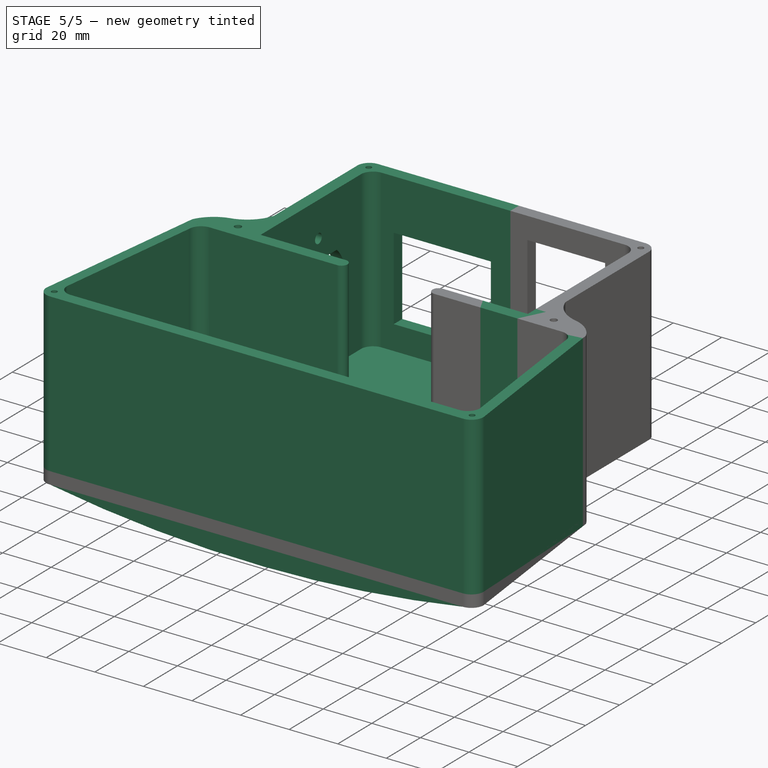
[diagram: stage 5 of 5 — iso view after this stage's code; geometry added in this stage tinted green]
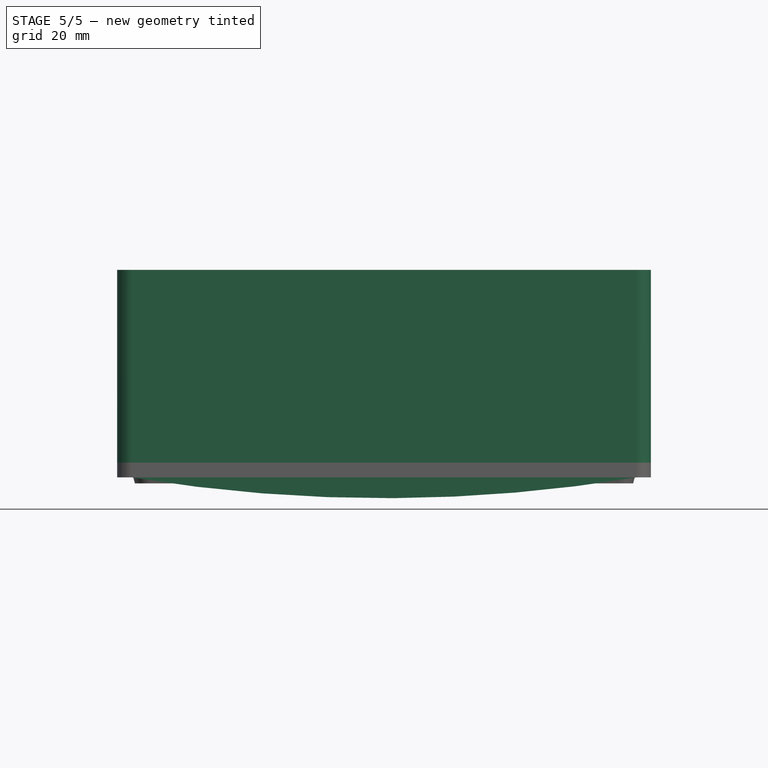
[diagram: stage 5 of 5 — front view after this stage's code; geometry added in this stage tinted green]
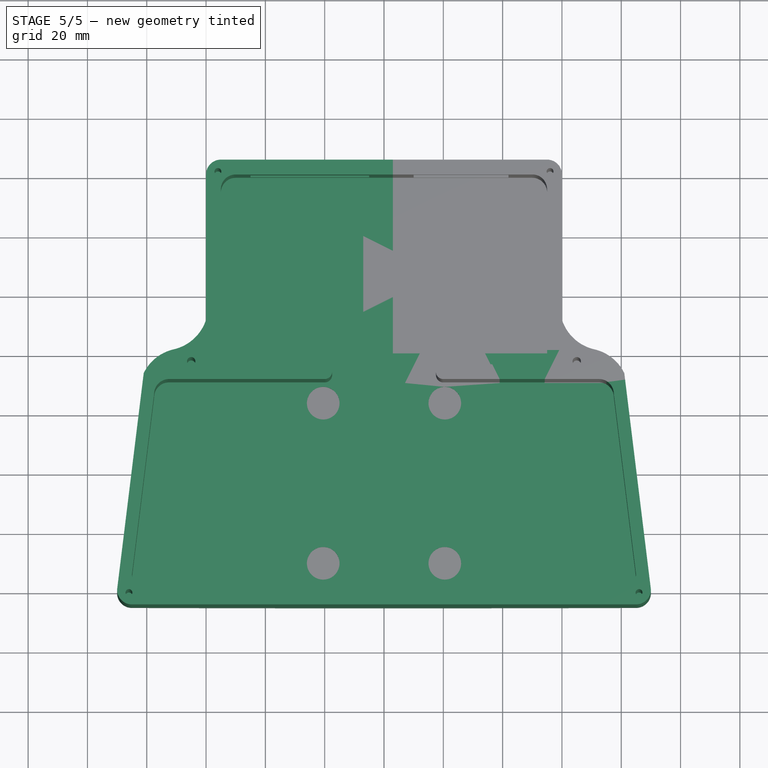
[diagram: stage 5 of 5 — top view after this stage's code; geometry added in this stage tinted green]
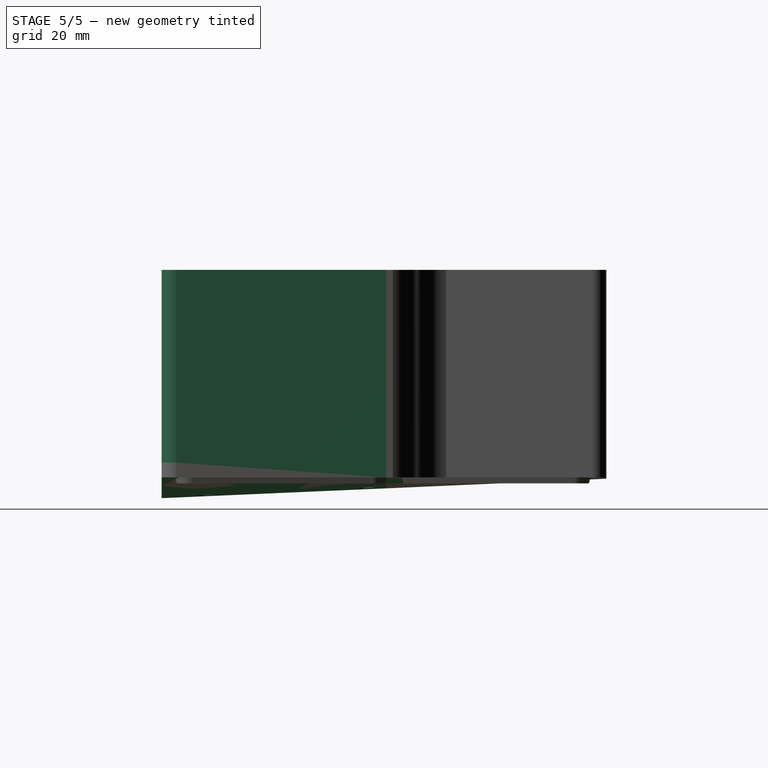
[diagram: stage 5 of 5 — right view after this stage's code; geometry added in this stage tinted green]
FEATURE [Part::FeaturePython] Slice_child0  label="Slice.0"  # WARN: FeaturePython — macro-defined, semantics opaque (R4)
  Base = -> Slice
  FilterType = 1
  Invert = false
  OverrideMaxVal = 0
  WindowFrom = 80
  WindowTo = 100
  items = 0
FEATURE [Part::FeaturePython] Slice_child1  label="Slice.1"  # WARN: FeaturePython — macro-defined, semantics opaque (R4)
  Base = -> Slice
  FilterType = 1
  Invert = false
  OverrideMaxVal = 0
  WindowFrom = 80
  WindowTo = 100
  items = 1
FEATURE [Part::FeaturePython] Slice_child2  label="Slice.2"  # WARN: FeaturePython — macro-defined, semantics opaque (R4)
  Base = -> Slice
  FilterType = 1
  Invert = false
  OverrideMaxVal = 0
  WindowFrom = 80
  WindowTo = 100
  items = 2
FEATURE [Part::FeaturePython] Slice_child3  label="Slice.3"  # WARN: FeaturePython — macro-defined, semantics opaque (R4)
  Base = -> Slice
  FilterType = 1
  Invert = false
  OverrideMaxVal = 0
  WindowFrom = 80
  WindowTo = 100
  items = 3
FEATURE [Part::FeaturePython] Slice_child4  label="Slice.4"  # WARN: FeaturePython — macro-defined, semantics opaque (R4)
  Base = -> Slice
  FilterType = 1
  Invert = false
  OverrideMaxVal = 0
  WindowFrom = 80
  WindowTo = 100
  items = 4
FEATURE [Part::FeaturePython] Slice_child5  label="Slice.5"  # WARN: FeaturePython — macro-defined, semantics opaque (R4)
  Base = -> Slice
  FilterType = 1
  Invert = false
  OverrideMaxVal = 0
  WindowFrom = 80
  WindowTo = 100
  items = 5
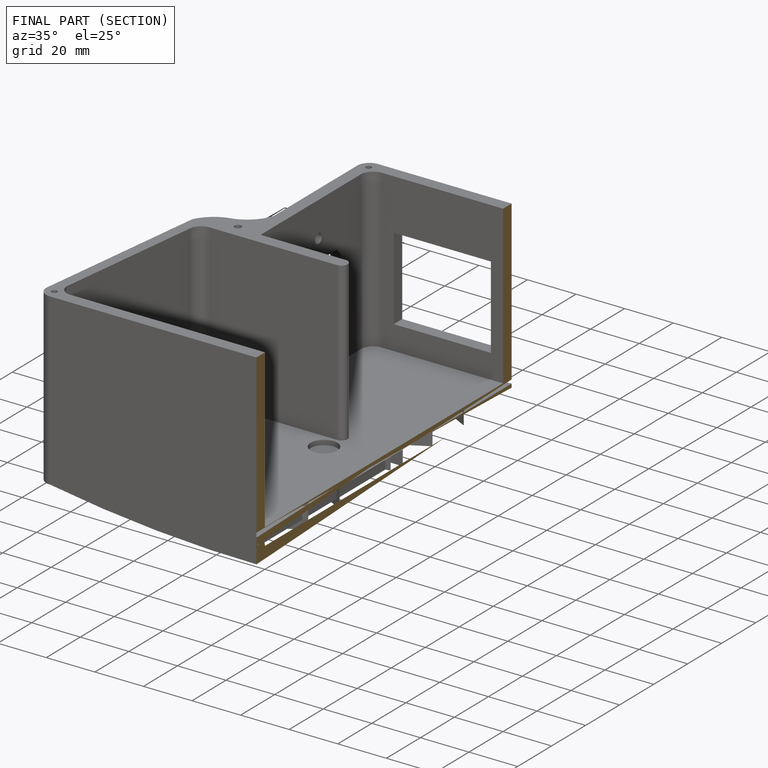
[diagram: finished part — half-section view (interior)]
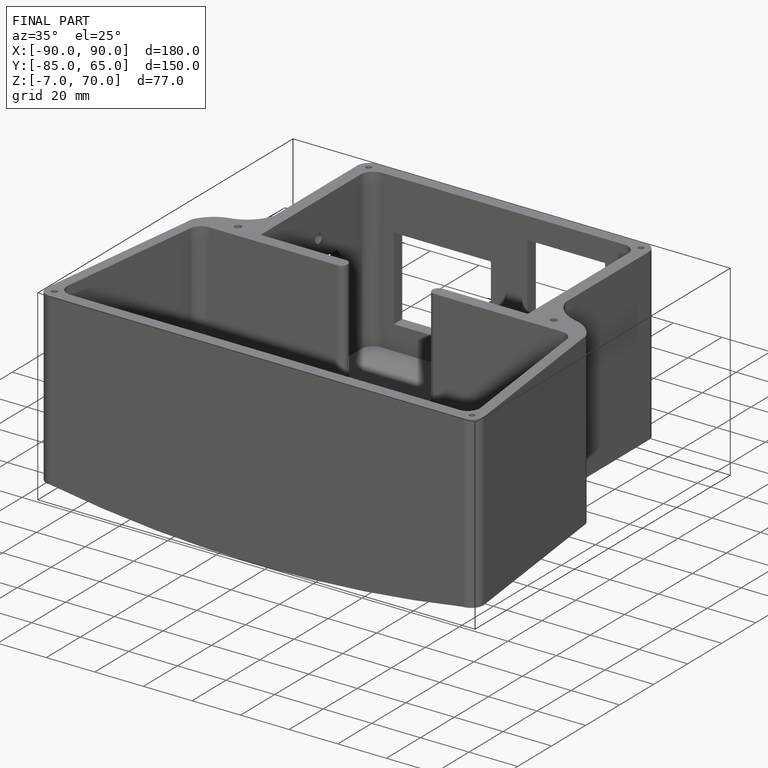
[diagram: finished part — iso view with bounding-box wireframe]
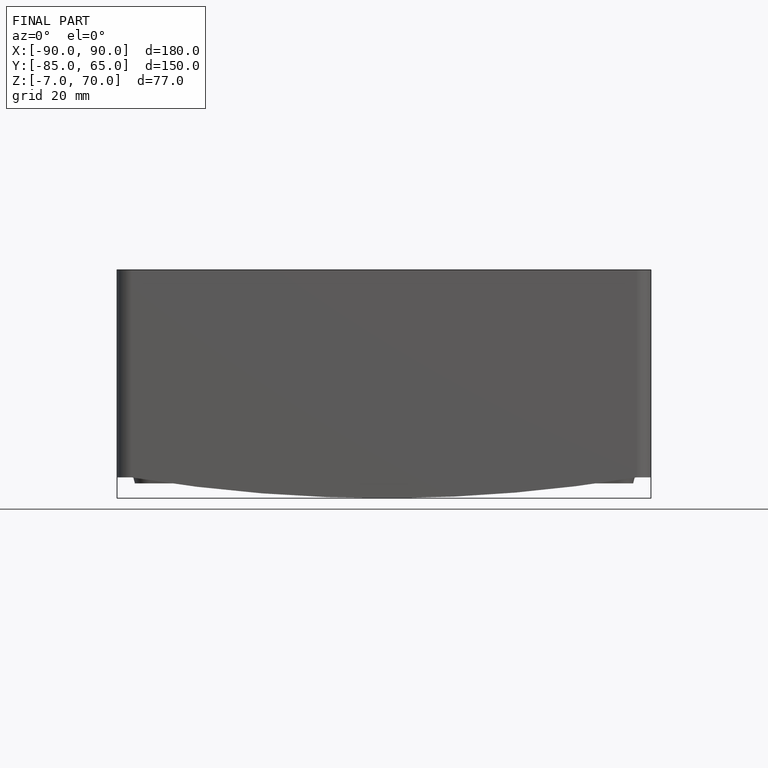
[diagram: finished part — front view with bounding-box wireframe]
